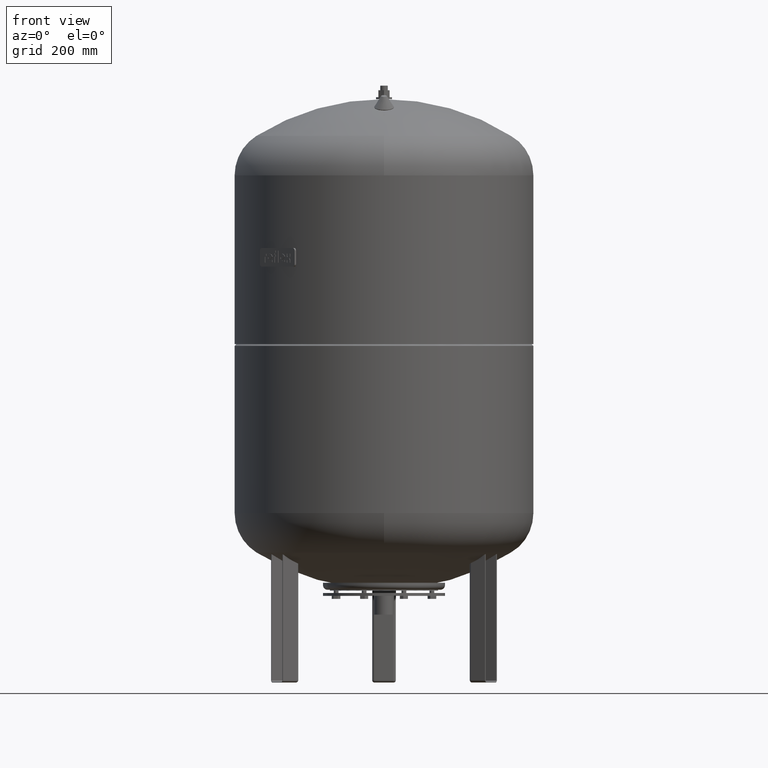
[diagram: clean part render]
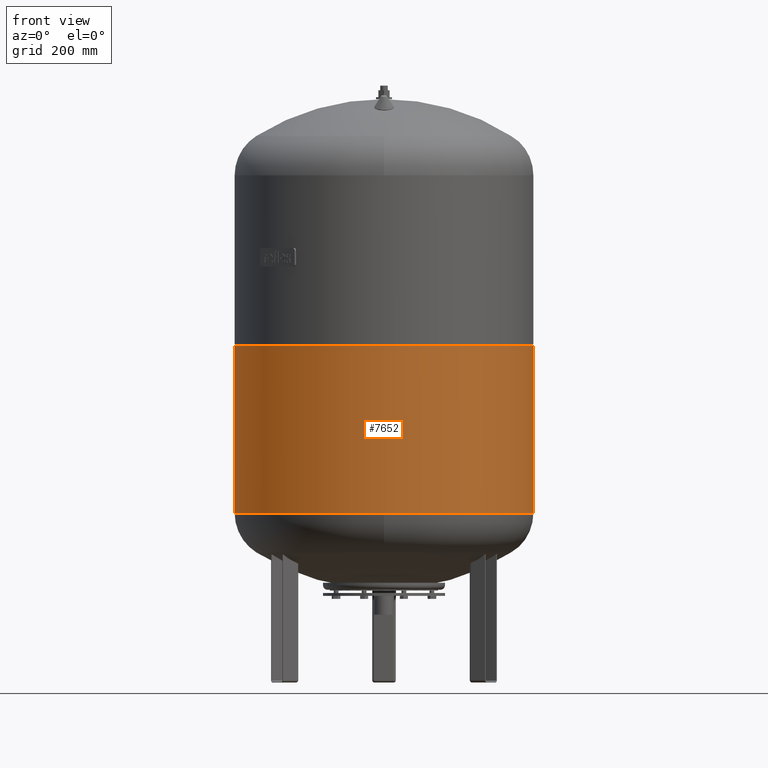
[diagram: same view with one face highlighted and labeled with its STEP entity id]
A machine part, front view. The second image highlights one B-rep face of the part: STEP entity #7652.
In plain terms, the highlighted cylindrical surface (partial cylindrical patch) has radius 317 mm, axis along (0, 0, 1).
Its self-contained STEP definition (entity closure, byte-faithful):
#7586=CARTESIAN_POINT('',(316.999999999999830,0.0,714.500000000000000));
#7587=VERTEX_POINT('',#7586);
#7603=CARTESIAN_POINT('',(-316.999999999999940,-3.882002E-014,714.500000000000000));
#7604=VERTEX_POINT('',#7603);
#7611=CARTESIAN_POINT('',(-1.631505E-016,0.0,714.500000000000000));
#7612=DIRECTION('',(0.0,0.0,1.0));
#7613=DIRECTION('',(1.0,0.0,0.0));
#7614=AXIS2_PLACEMENT_3D('',#7611,#7612,#7613);
#7615=CIRCLE('',#7614,316.999999999999830);
#7616=EDGE_CURVE('',#7604,#7587,#7615,.T.);
#7621=CARTESIAN_POINT('',(-9.262287E-015,0.0,519.299999999999950));
#7622=DIRECTION('',(4.661443E-017,0.0,1.0));
#7623=DIRECTION('',(1.0,0.0,0.0));
#7624=AXIS2_PLACEMENT_3D('',#7621,#7622,#7623);
#7625=CYLINDRICAL_SURFACE('',#7624,316.999999999999940);
#7626=CARTESIAN_POINT('',(317.0,0.0,359.999999999999830));
#7627=VERTEX_POINT('',#7626);
#7628=CARTESIAN_POINT('',(316.999999999999830,0.0,714.500000000000000));
#7629=DIRECTION('',(0.0,0.0,-1.0));
#7630=VECTOR('',#7629,354.500000000000170);
#7631=LINE('',#7628,#7630);
#7632=EDGE_CURVE('',#7587,#7627,#7631,.T.);
#7633=ORIENTED_EDGE('',*,*,#7632,.F.);
#7634=ORIENTED_EDGE('',*,*,#7616,.F.);
#7635=CARTESIAN_POINT('',(-316.999999999999940,-3.882002E-014,359.999999999999890));
#7636=VERTEX_POINT('',#7635);
#7637=CARTESIAN_POINT('',(-316.999999999999940,-3.882002E-014,714.500000000000000));
#7638=DIRECTION('',(0.0,0.0,-1.0));
#7639=VECTOR('',#7638,354.500000000000110);
#7640=LINE('',#7637,#7639);
#7641=EDGE_CURVE('',#7604,#7636,#7640,.T.);
#7642=ORIENTED_EDGE('',*,*,#7641,.T.);
#7643=CARTESIAN_POINT('',(-1.668796E-014,0.0,359.999999999999830));
#7644=DIRECTION('',(0.0,0.0,1.0));
#7645=DIRECTION('',(1.0,0.0,0.0));
#7646=AXIS2_PLACEMENT_3D('',#7643,#7644,#7645);
#7647=CIRCLE('',#7646,317.0);
#7648=EDGE_CURVE('',#7636,#7627,#7647,.T.);
#7649=ORIENTED_EDGE('',*,*,#7648,.T.);
#7650=EDGE_LOOP('',(#7633,#7634,#7642,#7649));
#7651=FACE_OUTER_BOUND('',#7650,.T.);
#7652=ADVANCED_FACE('',(#7651),#7625,.T.);